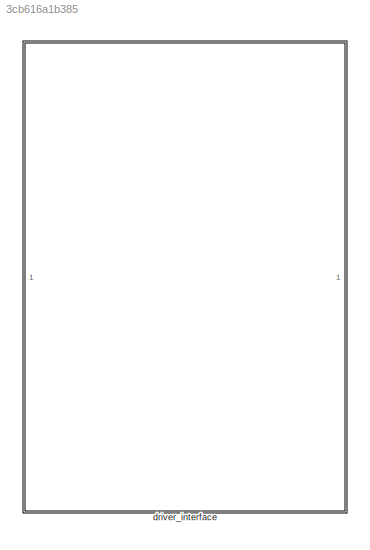
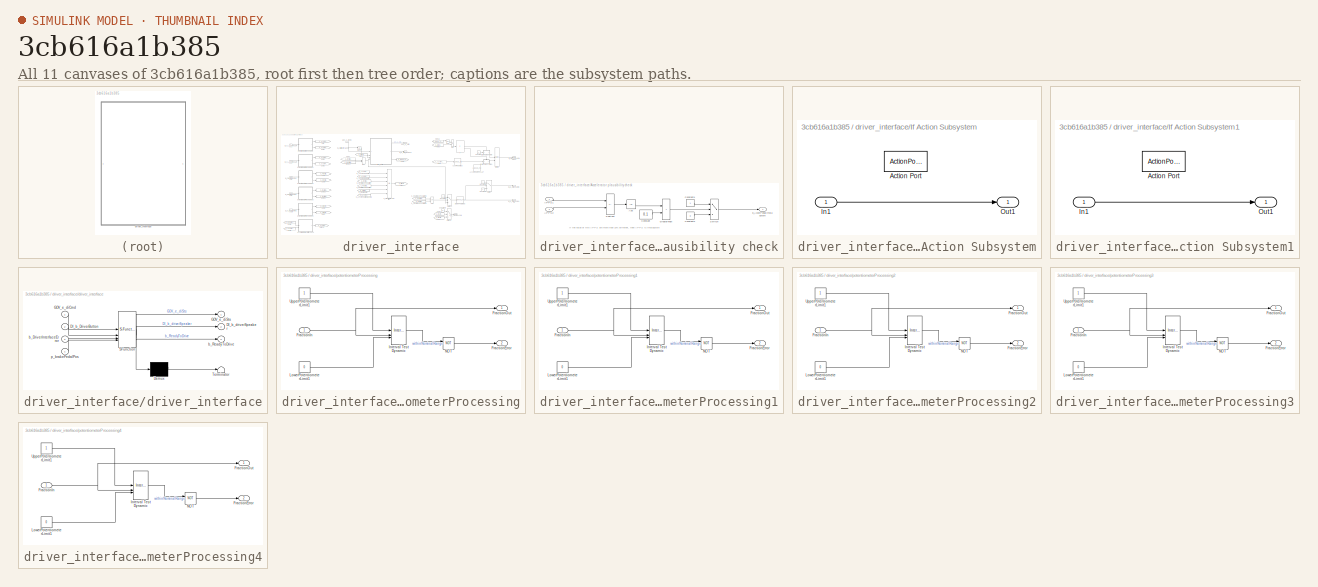
[diagram: thumbnail index - all 11 canvases of the model, root first then tree order]
MODEL slx_3cb616a1b385
KIND library
CONFIG AbsTol = auto
CONFIG EnableMultiTasking = off
CONFIG FixedStep = auto
CONFIG MaxStep = auto
CONFIG MinStep = auto
CONFIG RelTol = 1e-3
CONFIG SampleTimeConstraint = Unconstrained
CONFIG SolverName = VariableStepAuto
CONFIG StartTime = 0.0
CONFIG StopTime = 10.0
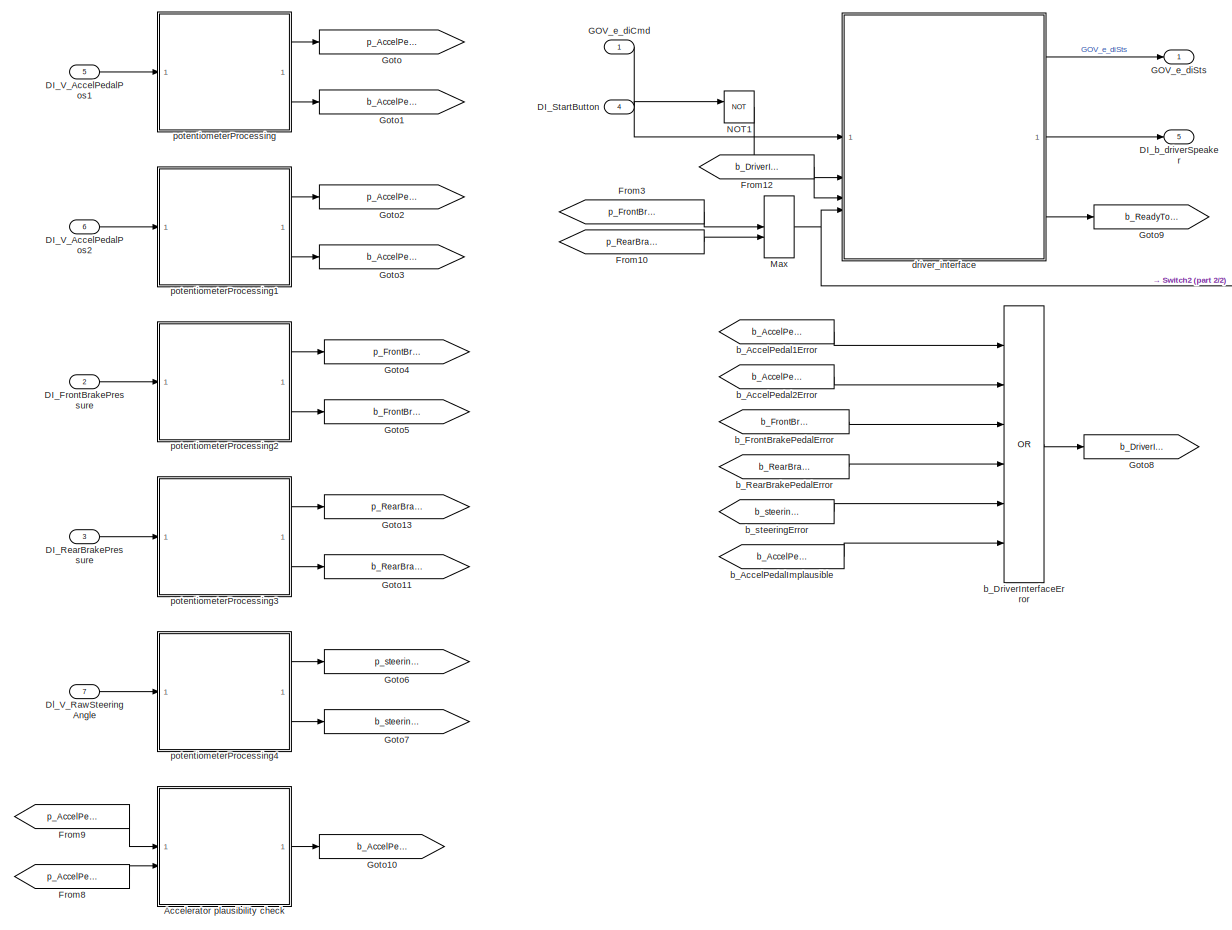
[diagram: driver_interface - part 1/2, left side, full height]
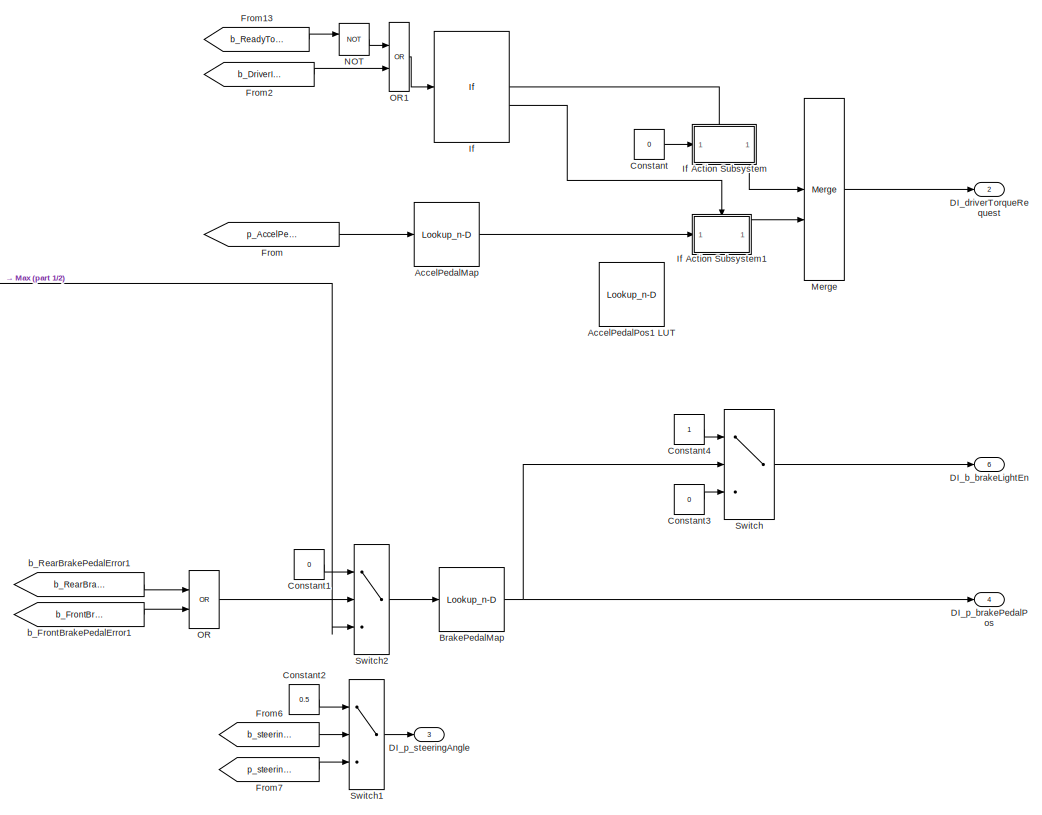
[diagram: driver_interface - part 2/2, right side, full height]
BLOCK [SubSystem] driver_interface
BLOCK [Lookup_n-D] driver_interface/AccelPedalMap
  BreakpointsForDimension1 = [0 1]
  ExtrapMethod = Clip
  InputPortMap = u0
  InternalRulePriority = Speed
  NumberOfTableDimensions = 1
  RndMeth = Simplest
  Table = [0 1]
BLOCK [Lookup_n-D] driver_interface/AccelPedalPos1 LUT
  BreakpointsForDimension1 = [0 1 2 3 4 5 6 7 8 9 10 11 12 13 14 15 16 17 18 19 20 21 22 23 24 25 26 27 28 29 30 31 32 33 34 35 36 37 38 39 40 41 42 43 44 45 46 47 48 49 50 51 52 53 54 55 56 57 58 59 60 61 62 63 64 65 66 67 68 69 70 71 72 73 74 75 76 77 78 79 80 81 82 83 84 85 86 87 88 89 90 91 92 93 94 95 96 97 98 99]
  Commented = on
  ExtrapMethod = Clip
  InputPortMap = u0
  InternalRulePriority = Speed
  NumberOfTableDimensions = 1
  RndMeth = Simplest
  Table = [0 0 0 0 0 0 0 0 0 0 0 0 0 0 0 0 0 0 0 0 0 0 1.85185185185185 3.7037037037037 5.55555555555556 7.40740740740741 9.25925925925926 11.1111111111111 12.962962962963 14.8148148148148 16.6666666666667 18.5185185185185 20.3703703703704 22.2222222222222 24.0740740740741 25.9259259259259 27.7777777777778 29.6296296296296 31.4814814814815 33.3333333333333 35.1851851851852 37.037037037037 38.8888888888889 4...<+627ch>
BLOCK [SubSystem] driver_interface/Accelerator plausibility check
BLOCK [Inport] driver_interface/Accelerator plausibility check/APPS1
BLOCK [Inport] driver_interface/Accelerator plausibility check/APPS2
  Port = 2
BLOCK [Abs] driver_interface/Accelerator plausibility check/Abs
  SaturateOnIntegerOverflow = off
BLOCK [Constant] driver_interface/Accelerator plausibility check/Constant
  Value = 0.1
BLOCK [Constant] driver_interface/Accelerator plausibility check/Constant1
BLOCK [Constant] driver_interface/Accelerator plausibility check/Constant2
  Value = 0
BLOCK [RelationalOperator] driver_interface/Accelerator plausibility check/GreaterThan
  InputSameDT = off
  Operator = >
  OutDataTypeStr = boolean
  RndMeth = Simplest
BLOCK [Sum] driver_interface/Accelerator plausibility check/Subtract
  IconShape = rectangular
  Inputs = +-
BLOCK [Switch] driver_interface/Accelerator plausibility check/Switch
  Criteria = u2 > Threshold
  InputSameDT = off
  SaturateOnIntegerOverflow = off
BLOCK [Outport] driver_interface/Accelerator plausibility check/b_AccelPedalImplausible
BLOCK [Lookup_n-D] driver_interface/BrakePedalMap
  BreakpointsForDimension1 = [0 5 10 15 20 25 30 35 40 45 50 55 60 65 70 75 80 85 90 95 100]
  ExtrapMethod = Clip
  InputPortMap = u0
  InternalRulePriority = Speed
  NumberOfTableDimensions = 1
  RndMeth = Simplest
  Table = [0 5 10 15 20 25 30 35 40 45 50 55 60 65 70 75 80 85 90 95 100]
BLOCK [Constant] driver_interface/Constant
  OutDataTypeStr = double
  Value = 0
BLOCK [Constant] driver_interface/Constant1
  OutDataTypeStr = single
  Value = 0
BLOCK [Constant] driver_interface/Constant2
  OutDataTypeStr = single
  Value = 0.5
BLOCK [Constant] driver_interface/Constant3
  OutDataTypeStr = boolean
  Value = 0
BLOCK [Constant] driver_interface/Constant4
  OutDataTypeStr = boolean
BLOCK [Inport] driver_interface/DI_FrontBrakePressure
  Port = 2
BLOCK [Inport] driver_interface/DI_RearBrakePressure
  Port = 3
BLOCK [Inport] driver_interface/DI_StartButton
  Port = 4
BLOCK [Inport] driver_interface/DI_V_AccelPedalPos1
  Port = 5
BLOCK [Inport] driver_interface/DI_V_AccelPedalPos2
  Port = 6
BLOCK [Outport] driver_interface/DI_b_brakeLightEn
  Port = 6
BLOCK [Outport] driver_interface/DI_b_driverSpeaker
  Port = 5
BLOCK [Outport] driver_interface/DI_driverTorqueRequest
  Port = 2
BLOCK [Outport] driver_interface/DI_p_brakePedalPos
  Port = 4
BLOCK [Outport] driver_interface/DI_p_steeringAngle
  Port = 3
BLOCK [Inport] driver_interface/Dl_V_RawSteeringAngle
  Port = 7
BLOCK [From] driver_interface/From
  GotoTag = p_AccelPedalPos1
BLOCK [From] driver_interface/From10
  GotoTag = p_RearBrakePedalPos
BLOCK [From] driver_interface/From12
  GotoTag = b_DriverInterfaceError
BLOCK [From] driver_interface/From13
  GotoTag = b_ReadyToDrive
BLOCK [From] driver_interface/From2
  GotoTag = b_DriverInterfaceError
BLOCK [From] driver_interface/From3
  GotoTag = p_FrontBrakePedalPres
BLOCK [From] driver_interface/From6
  GotoTag = b_steeringError
BLOCK [From] driver_interface/From7
  GotoTag = p_steeringAngle
BLOCK [From] driver_interface/From8
  GotoTag = p_AccelPedalPos2
BLOCK [From] driver_interface/From9
  GotoTag = p_AccelPedalPos1
BLOCK [Inport] driver_interface/GOV_e_diCmd
BLOCK [Outport] driver_interface/GOV_e_diSts
BLOCK [Goto] driver_interface/Goto
  GotoTag = p_AccelPedalPos1
BLOCK [Goto] driver_interface/Goto1
  GotoTag = b_AccelPedal1Error
BLOCK [Goto] driver_interface/Goto10
  GotoTag = b_AccelPedalImplausible
BLOCK [Goto] driver_interface/Goto11
  GotoTag = b_RearBrakePedalError
BLOCK [Goto] driver_interface/Goto13
  GotoTag = p_RearBrakePedalPos
BLOCK [Goto] driver_interface/Goto2
  GotoTag = p_AccelPedalPos2
BLOCK [Goto] driver_interface/Goto3
  GotoTag = b_AccelPedal2Error
BLOCK [Goto] driver_interface/Goto4
  GotoTag = p_FrontBrakePedalPres
BLOCK [Goto] driver_interface/Goto5
  GotoTag = b_FrontBrakePedalError
BLOCK [Goto] driver_interface/Goto6
  GotoTag = p_steeringAngle
BLOCK [Goto] driver_interface/Goto7
  GotoTag = b_steeringError
BLOCK [Goto] driver_interface/Goto8
  GotoTag = b_DriverInterfaceError
BLOCK [Goto] driver_interface/Goto9
  GotoTag = b_ReadyToDrive
BLOCK [If] driver_interface/If
  IfExpression = u1==1
BLOCK [SubSystem] driver_interface/If Action Subsystem
  TreatAsAtomicUnit = on
BLOCK [ActionPort] driver_interface/If Action Subsystem/Action Port
BLOCK [Inport] driver_interface/If Action Subsystem/In1
BLOCK [Outport] driver_interface/If Action Subsystem/Out1
BLOCK [SubSystem] driver_interface/If Action Subsystem1
  TreatAsAtomicUnit = on
BLOCK [ActionPort] driver_interface/If Action Subsystem1/Action Port
BLOCK [Inport] driver_interface/If Action Subsystem1/In1
BLOCK [Outport] driver_interface/If Action Subsystem1/Out1
BLOCK [MinMax] driver_interface/Max
  Function = max
  Inputs = 2
BLOCK [Merge] driver_interface/Merge
BLOCK [Logic] driver_interface/NOT
  AllPortsSameDT = off
  IconShape = distinctive
  Operator = NOT
  OutDataTypeStr = boolean
BLOCK [Logic] driver_interface/NOT1
  AllPortsSameDT = off
  IconShape = distinctive
  Operator = NOT
  OutDataTypeStr = boolean
BLOCK [Logic] driver_interface/OR
  AllPortsSameDT = off
  Operator = OR
  OutDataTypeStr = boolean
BLOCK [Logic] driver_interface/OR1
  AllPortsSameDT = off
  Operator = OR
  OutDataTypeStr = boolean
BLOCK [Switch] driver_interface/Switch
  Criteria = u2 > Threshold
  InputSameDT = off
  SaturateOnIntegerOverflow = off
  Threshold = 0.1
BLOCK [Switch] driver_interface/Switch1
  Criteria = u2 > Threshold
  InputSameDT = off
  SaturateOnIntegerOverflow = off
BLOCK [Switch] driver_interface/Switch2
  Criteria = u2 > Threshold
  InputSameDT = off
  SaturateOnIntegerOverflow = off
BLOCK [From] driver_interface/b_AccelPedal1Error
  GotoTag = b_AccelPedal1Error
BLOCK [From] driver_interface/b_AccelPedal2Error
  GotoTag = b_AccelPedal2Error
BLOCK [From] driver_interface/b_AccelPedalImplausible
  GotoTag = b_AccelPedalImplausible
BLOCK [Logic] driver_interface/b_DriverInterfaceError
  AllPortsSameDT = off
  Inputs = 6
  Operator = OR
  OutDataTypeStr = boolean
BLOCK [From] driver_interface/b_FrontBrakePedalError
  GotoTag = b_FrontBrakePedalError
BLOCK [From] driver_interface/b_FrontBrakePedalError1
  GotoTag = b_FrontBrakePedalError
BLOCK [From] driver_interface/b_RearBrakePedalError
  GotoTag = b_RearBrakePedalError
BLOCK [From] driver_interface/b_RearBrakePedalError1
  GotoTag = b_RearBrakePedalError
BLOCK [From] driver_interface/b_steeringError
  GotoTag = b_steeringError
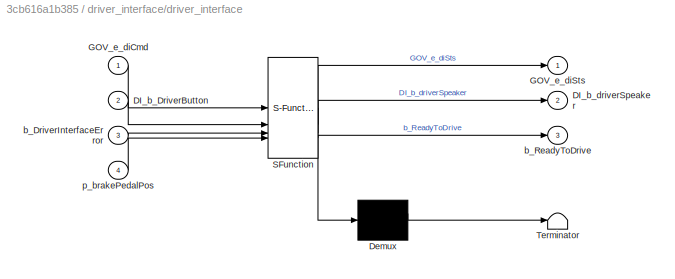
BLOCK [SubSystem] driver_interface/driver_interface
  ErrorFcn = Stateflow.Translate.translate
  PermitHierarchicalResolution = ExplicitOnly
  SFBlockType = Chart
  TreatAsAtomicUnit = on
BLOCK [Demux] driver_interface/driver_interface/ Demux 
  Outputs = 1
BLOCK [S-Function] driver_interface/driver_interface/ SFunction 
  EnableBusSupport = off
  FunctionName = sf_sfun
  PortCounts = [4 4]
  SFcnIsStateOwnerBlock = off
  SFunctionDeploymentMode = off
  Tag = Stateflow S-Function 2
BLOCK [Terminator] driver_interface/driver_interface/ Terminator 
BLOCK [Inport] driver_interface/driver_interface/DI_b_DriverButton
  Port = 2
BLOCK [Outport] driver_interface/driver_interface/DI_b_driverSpeaker
  Port = 2
BLOCK [Inport] driver_interface/driver_interface/GOV_e_diCmd
BLOCK [Outport] driver_interface/driver_interface/GOV_e_diSts
BLOCK [Inport] driver_interface/driver_interface/b_DriverInterfaceError
  Port = 3
BLOCK [Outport] driver_interface/driver_interface/b_ReadyToDrive
  Port = 3
BLOCK [Inport] driver_interface/driver_interface/p_brakePedalPos
  Port = 4
BLOCK [SubSystem] driver_interface/potentiometerProcessing
BLOCK [Outport] driver_interface/potentiometerProcessing/FractionError
  Port = 2
BLOCK [Inport] driver_interface/potentiometerProcessing/FractionIn
BLOCK [Outport] driver_interface/potentiometerProcessing/FractionOut
BLOCK [Reference] driver_interface/potentiometerProcessing/Interval Test Dynamic  REF=simulink/Logic and Bit
Operations/Interval Test
Dynamic
  SourceBlock = simulink/Logic and Bit\nOperations/Interval Test\nDynamic
  SourceType = Interval Test Dynamic
BLOCK [Constant] driver_interface/potentiometerProcessing/LowerPotentiometerLimit1
  OutDataTypeStr = double
  Value = 0
BLOCK [Logic] driver_interface/potentiometerProcessing/NOT
  AllPortsSameDT = off
  IconShape = distinctive
  Operator = NOT
  OutDataTypeStr = boolean
BLOCK [Constant] driver_interface/potentiometerProcessing/UpperPotentiometerLimit1
  OutDataTypeStr = double
BLOCK [SubSystem] driver_interface/potentiometerProcessing1
BLOCK [Outport] driver_interface/potentiometerProcessing1/FractionError
  Port = 2
BLOCK [Inport] driver_interface/potentiometerProcessing1/FractionIn
BLOCK [Outport] driver_interface/potentiometerProcessing1/FractionOut
BLOCK [Reference] driver_interface/potentiometerProcessing1/Interval Test Dynamic  REF=simulink/Logic and Bit
Operations/Interval Test
Dynamic
  SourceBlock = simulink/Logic and Bit\nOperations/Interval Test\nDynamic
  SourceType = Interval Test Dynamic
BLOCK [Constant] driver_interface/potentiometerProcessing1/LowerPotentiometerLimit1
  OutDataTypeStr = double
  Value = 0
BLOCK [Logic] driver_interface/potentiometerProcessing1/NOT
  AllPortsSameDT = off
  IconShape = distinctive
  Operator = NOT
  OutDataTypeStr = boolean
BLOCK [Constant] driver_interface/potentiometerProcessing1/UpperPotentiometerLimit1
  OutDataTypeStr = double
BLOCK [SubSystem] driver_interface/potentiometerProcessing2
BLOCK [Outport] driver_interface/potentiometerProcessing2/FractionError
  Port = 2
BLOCK [Inport] driver_interface/potentiometerProcessing2/FractionIn
BLOCK [Outport] driver_interface/potentiometerProcessing2/FractionOut
BLOCK [Reference] driver_interface/potentiometerProcessing2/Interval Test Dynamic  REF=simulink/Logic and Bit
Operations/Interval Test
Dynamic
  SourceBlock = simulink/Logic and Bit\nOperations/Interval Test\nDynamic
  SourceType = Interval Test Dynamic
BLOCK [Constant] driver_interface/potentiometerProcessing2/LowerPotentiometerLimit1
  OutDataTypeStr = double
  Value = 0
BLOCK [Logic] driver_interface/potentiometerProcessing2/NOT
  AllPortsSameDT = off
  IconShape = distinctive
  Operator = NOT
  OutDataTypeStr = boolean
BLOCK [Constant] driver_interface/potentiometerProcessing2/UpperPotentiometerLimit1
  OutDataTypeStr = double
BLOCK [SubSystem] driver_interface/potentiometerProcessing3
BLOCK [Outport] driver_interface/potentiometerProcessing3/FractionError
  Port = 2
BLOCK [Inport] driver_interface/potentiometerProcessing3/FractionIn
BLOCK [Outport] driver_interface/potentiometerProcessing3/FractionOut
BLOCK [Reference] driver_interface/potentiometerProcessing3/Interval Test Dynamic  REF=simulink/Logic and Bit
Operations/Interval Test
Dynamic
  SourceBlock = simulink/Logic and Bit\nOperations/Interval Test\nDynamic
  SourceType = Interval Test Dynamic
BLOCK [Constant] driver_interface/potentiometerProcessing3/LowerPotentiometerLimit1
  OutDataTypeStr = double
  Value = 0
BLOCK [Logic] driver_interface/potentiometerProcessing3/NOT
  AllPortsSameDT = off
  IconShape = distinctive
  Operator = NOT
  OutDataTypeStr = boolean
BLOCK [Constant] driver_interface/potentiometerProcessing3/UpperPotentiometerLimit1
  OutDataTypeStr = double
BLOCK [SubSystem] driver_interface/potentiometerProcessing4
BLOCK [Outport] driver_interface/potentiometerProcessing4/FractionError
  Port = 2
BLOCK [Inport] driver_interface/potentiometerProcessing4/FractionIn
BLOCK [Outport] driver_interface/potentiometerProcessing4/FractionOut
BLOCK [Reference] driver_interface/potentiometerProcessing4/Interval Test Dynamic  REF=simulink/Logic and Bit
Operations/Interval Test
Dynamic
  SourceBlock = simulink/Logic and Bit\nOperations/Interval Test\nDynamic
  SourceType = Interval Test Dynamic
BLOCK [Constant] driver_interface/potentiometerProcessing4/LowerPotentiometerLimit1
  OutDataTypeStr = double
  Value = 0
BLOCK [Logic] driver_interface/potentiometerProcessing4/NOT
  AllPortsSameDT = off
  IconShape = distinctive
  Operator = NOT
  OutDataTypeStr = boolean
BLOCK [Constant] driver_interface/potentiometerProcessing4/UpperPotentiometerLimit1
  OutDataTypeStr = double
ANNOTATION driver_interface/Accelerator plausibility check: If the value of two APPS are more than 10% different, then APPS is implausible
LINE driver_interface/AccelPedalMap:1 -> driver_interface/If Action Subsystem1:1
LINE driver_interface/Accelerator plausibility check/APPS1:1 -> driver_interface/Accelerator plausibility check/Subtract:1
LINE driver_interface/Accelerator plausibility check/APPS2:1 -> driver_interface/Accelerator plausibility check/Subtract:2
LINE driver_interface/Accelerator plausibility check/Abs:1 -> driver_interface/Accelerator plausibility check/GreaterThan:1
LINE driver_interface/Accelerator plausibility check/Constant1:1 -> driver_interface/Accelerator plausibility check/Switch:1
LINE driver_interface/Accelerator plausibility check/Constant2:1 -> driver_interface/Accelerator plausibility check/Switch:3
LINE driver_interface/Accelerator plausibility check/Constant:1 -> driver_interface/Accelerator plausibility check/GreaterThan:2
LINE driver_interface/Accelerator plausibility check/GreaterThan:1 -> driver_interface/Accelerator plausibility check/Switch:2
LINE driver_interface/Accelerator plausibility check/Subtract:1 -> driver_interface/Accelerator plausibility check/Abs:1
LINE driver_interface/Accelerator plausibility check/Switch:1 -> driver_interface/Accelerator plausibility check/b_AccelPedalImplausible:1
LINE driver_interface/Accelerator plausibility check:1 -> driver_interface/Goto10:1
NET driver_interface/BrakePedalMap:1 -> driver_interface/DI_p_brakePedalPos:1, driver_interface/Switch:2
LINE driver_interface/Constant1:1 -> driver_interface/Switch2:1
LINE driver_interface/Constant2:1 -> driver_interface/Switch1:1
LINE driver_interface/Constant3:1 -> driver_interface/Switch:3
LINE driver_interface/Constant4:1 -> driver_interface/Switch:1
LINE driver_interface/Constant:1 -> driver_interface/If Action Subsystem:1
LINE driver_interface/DI_FrontBrakePressure:1 -> driver_interface/potentiometerProcessing2:1
LINE driver_interface/DI_RearBrakePressure:1 -> driver_interface/potentiometerProcessing3:1
LINE driver_interface/DI_StartButton:1 -> driver_interface/NOT1:1
LINE driver_interface/DI_V_AccelPedalPos1:1 -> driver_interface/potentiometerProcessing:1
LINE driver_interface/DI_V_AccelPedalPos2:1 -> driver_interface/potentiometerProcessing1:1
LINE driver_interface/Dl_V_RawSteeringAngle:1 -> driver_interface/potentiometerProcessing4:1
LINE driver_interface/From10:1 -> driver_interface/Max:2
LINE driver_interface/From12:1 -> driver_interface/driver_interface:3
LINE driver_interface/From13:1 -> driver_interface/NOT:1
LINE driver_interface/From2:1 -> driver_interface/OR1:2
LINE driver_interface/From3:1 -> driver_interface/Max:1
LINE driver_interface/From6:1 -> driver_interface/Switch1:2
LINE driver_interface/From7:1 -> driver_interface/Switch1:3
LINE driver_interface/From8:1 -> driver_interface/Accelerator plausibility check:2
LINE driver_interface/From9:1 -> driver_interface/Accelerator plausibility check:1
LINE driver_interface/From:1 -> driver_interface/AccelPedalMap:1
LINE driver_interface/GOV_e_diCmd:1 -> driver_interface/driver_interface:1
LINE driver_interface/If Action Subsystem/In1:1 -> driver_interface/If Action Subsystem/Out1:1
LINE driver_interface/If Action Subsystem1/In1:1 -> driver_interface/If Action Subsystem1/Out1:1
LINE driver_interface/If Action Subsystem1:1 -> driver_interface/Merge:2
LINE driver_interface/If Action Subsystem:1 -> driver_interface/Merge:1
LINE driver_interface/If:1 -> driver_interface/If Action Subsystem:ifaction
LINE driver_interface/If:2 -> driver_interface/If Action Subsystem1:ifaction
NET driver_interface/Max:1 -> driver_interface/Switch2:3, driver_interface/driver_interface:4
LINE driver_interface/Merge:1 -> driver_interface/DI_driverTorqueRequest:1
LINE driver_interface/NOT1:1 -> driver_interface/driver_interface:2
LINE driver_interface/NOT:1 -> driver_interface/OR1:1
LINE driver_interface/OR1:1 -> driver_interface/If:1
LINE driver_interface/OR:1 -> driver_interface/Switch2:2
LINE driver_interface/Switch1:1 -> driver_interface/DI_p_steeringAngle:1
LINE driver_interface/Switch2:1 -> driver_interface/BrakePedalMap:1
LINE driver_interface/Switch:1 -> driver_interface/DI_b_brakeLightEn:1
LINE driver_interface/b_AccelPedal1Error:1 -> driver_interface/b_DriverInterfaceError:1
LINE driver_interface/b_AccelPedal2Error:1 -> driver_interface/b_DriverInterfaceError:2
LINE driver_interface/b_AccelPedalImplausible:1 -> driver_interface/b_DriverInterfaceError:6
LINE driver_interface/b_DriverInterfaceError:1 -> driver_interface/Goto8:1
LINE driver_interface/b_FrontBrakePedalError1:1 -> driver_interface/OR:2
LINE driver_interface/b_FrontBrakePedalError:1 -> driver_interface/b_DriverInterfaceError:3
LINE driver_interface/b_RearBrakePedalError1:1 -> driver_interface/OR:1
LINE driver_interface/b_RearBrakePedalError:1 -> driver_interface/b_DriverInterfaceError:4
LINE driver_interface/b_steeringError:1 -> driver_interface/b_DriverInterfaceError:5
LINE driver_interface/driver_interface:1 -> driver_interface/GOV_e_diSts:1
LINE driver_interface/driver_interface:2 -> driver_interface/DI_b_driverSpeaker:1
LINE driver_interface/driver_interface:3 -> driver_interface/Goto9:1
NET driver_interface/potentiometerProcessing/FractionIn:1 -> driver_interface/potentiometerProcessing/FractionOut:1, driver_interface/potentiometerProcessing/Interval Test Dynamic:2
LINE driver_interface/potentiometerProcessing/Interval Test Dynamic:1 -> driver_interface/potentiometerProcessing/NOT:1
LINE driver_interface/potentiometerProcessing/LowerPotentiometerLimit1:1 -> driver_interface/potentiometerProcessing/Interval Test Dynamic:3
LINE driver_interface/potentiometerProcessing/NOT:1 -> driver_interface/potentiometerProcessing/FractionError:1
LINE driver_interface/potentiometerProcessing/UpperPotentiometerLimit1:1 -> driver_interface/potentiometerProcessing/Interval Test Dynamic:1
NET driver_interface/potentiometerProcessing1/FractionIn:1 -> driver_interface/potentiometerProcessing1/FractionOut:1, driver_interface/potentiometerProcessing1/Interval Test Dynamic:2
LINE driver_interface/potentiometerProcessing1/Interval Test Dynamic:1 -> driver_interface/potentiometerProcessing1/NOT:1
LINE driver_interface/potentiometerProcessing1/LowerPotentiometerLimit1:1 -> driver_interface/potentiometerProcessing1/Interval Test Dynamic:3
LINE driver_interface/potentiometerProcessing1/NOT:1 -> driver_interface/potentiometerProcessing1/FractionError:1
LINE driver_interface/potentiometerProcessing1/UpperPotentiometerLimit1:1 -> driver_interface/potentiometerProcessing1/Interval Test Dynamic:1
LINE driver_interface/potentiometerProcessing1:1 -> driver_interface/Goto2:1
LINE driver_interface/potentiometerProcessing1:2 -> driver_interface/Goto3:1
NET driver_interface/potentiometerProcessing2/FractionIn:1 -> driver_interface/potentiometerProcessing2/FractionOut:1, driver_interface/potentiometerProcessing2/Interval Test Dynamic:2
LINE driver_interface/potentiometerProcessing2/Interval Test Dynamic:1 -> driver_interface/potentiometerProcessing2/NOT:1
LINE driver_interface/potentiometerProcessing2/LowerPotentiometerLimit1:1 -> driver_interface/potentiometerProcessing2/Interval Test Dynamic:3
LINE driver_interface/potentiometerProcessing2/NOT:1 -> driver_interface/potentiometerProcessing2/FractionError:1
LINE driver_interface/potentiometerProcessing2/UpperPotentiometerLimit1:1 -> driver_interface/potentiometerProcessing2/Interval Test Dynamic:1
LINE driver_interface/potentiometerProcessing2:1 -> driver_interface/Goto4:1
LINE driver_interface/potentiometerProcessing2:2 -> driver_interface/Goto5:1
NET driver_interface/potentiometerProcessing3/FractionIn:1 -> driver_interface/potentiometerProcessing3/FractionOut:1, driver_interface/potentiometerProcessing3/Interval Test Dynamic:2
LINE driver_interface/potentiometerProcessing3/Interval Test Dynamic:1 -> driver_interface/potentiometerProcessing3/NOT:1
LINE driver_interface/potentiometerProcessing3/LowerPotentiometerLimit1:1 -> driver_interface/potentiometerProcessing3/Interval Test Dynamic:3
LINE driver_interface/potentiometerProcessing3/NOT:1 -> driver_interface/potentiometerProcessing3/FractionError:1
LINE driver_interface/potentiometerProcessing3/UpperPotentiometerLimit1:1 -> driver_interface/potentiometerProcessing3/Interval Test Dynamic:1
LINE driver_interface/potentiometerProcessing3:1 -> driver_interface/Goto13:1
LINE driver_interface/potentiometerProcessing3:2 -> driver_interface/Goto11:1
NET driver_interface/potentiometerProcessing4/FractionIn:1 -> driver_interface/potentiometerProcessing4/FractionOut:1, driver_interface/potentiometerProcessing4/Interval Test Dynamic:2
LINE driver_interface/potentiometerProcessing4/Interval Test Dynamic:1 -> driver_interface/potentiometerProcessing4/NOT:1
LINE driver_interface/potentiometerProcessing4/LowerPotentiometerLimit1:1 -> driver_interface/potentiometerProcessing4/Interval Test Dynamic:3
LINE driver_interface/potentiometerProcessing4/NOT:1 -> driver_interface/potentiometerProcessing4/FractionError:1
LINE driver_interface/potentiometerProcessing4/UpperPotentiometerLimit1:1 -> driver_interface/potentiometerProcessing4/Interval Test Dynamic:1
LINE driver_interface/potentiometerProcessing4:1 -> driver_interface/Goto6:1
LINE driver_interface/potentiometerProcessing4:2 -> driver_interface/Goto7:1
LINE driver_interface/potentiometerProcessing:1 -> driver_interface/Goto:1
LINE driver_interface/potentiometerProcessing:2 -> driver_interface/Goto1:1
note: NET lines group one-source signal fan-out (src -> all destinations, sorted); 1:1 wires keep LINE
CHART driver_interface/driver_interface states=10 transitions=10
  STATE_LABEL 'INIT\nen:\nGOV_e_diSts = DI_STATUSES.DI_STS_INIT;\nb_ReadyToDrive=false;\nDI_b_driverSpeaker = false;\n'
  STATE_LABEL 'DI_running'
  STATE_LABEL 'Waiting_for_driver\nen:\nGOV_e_diSts = ...\n    DI_STATUSES.WAITING_FOR_DRVR;'
  STATE_LABEL 'Driver_requested_start\nen:\nGOV_e_diSts =...\n    DI_STATUSES.HV_START_REQ;'
  STATE_LABEL 'Motor_start_request\nen:\nGOV_e_diSts = ...\n    DI_STATUSES.READY_TO_DRIVE_REQ;'
  STATE_LABEL 'Ready_to_drive\nen:\nb_ReadyToDrive = true;\nGOV_e_diSts = DI_RUNNING;\n'
  STATE_LABEL 'SpeakerOn_\nen:\nDI_b_driverSpeaker = true;\n'
  STATE_LABEL 'SpeakerOff\nen:\nDI_b_driverSpeaker = false;\n'
  STATE_LABEL 'after(2,sec)'
  STATE_LABEL '[(DI_b_DriverButton==1)]'
  STATE_LABEL '[GOV_e_diCmd == DI_CMD.HV_ON && DI_b_DriverButton == 1]'
  STATE_LABEL '[GOV_e_diCmd ==...\n DI_CMD.READY_TO_DRIVE  && (p_brakePedalPos>0.1)]'
  STATE_LABEL 'Waiting_for_driver\nen:\nGOV_e_diSts = ...\n    DI_STATUSES.WAITING_FOR_DRVR;'
  STATE_LABEL 'Driver_requested_start\nen:\nGOV_e_diSts =...\n    DI_STATUSES.HV_START_REQ;'
  STATE_LABEL 'Motor_start_request\nen:\nGOV_e_diSts = ...\n    DI_STATUSES.READY_TO_DRIVE_REQ;'
  STATE_LABEL 'Ready_to_drive\nen:\nb_ReadyToDrive = true;\nGOV_e_diSts = DI_RUNNING;\n'
  STATE_LABEL 'SpeakerOn_\nen:\nDI_b_driverSpeaker = true;\n'
  STATE_LABEL 'SpeakerOff\nen:\nDI_b_driverSpeaker = false;\n'
  STATE_LABEL 'after(2,sec)'
  STATE_LABEL 'SpeakerOn_\nen:\nDI_b_driverSpeaker = true;\n'
  STATE_LABEL 'SpeakerOff\nen:\nDI_b_driverSpeaker = false;\n'
  STATE_LABEL 'DI_error\nen:\nGOV_e_diSts = DI_STATUSES.DI_ERROR;\n'
  STATE_LABEL 'Vehicle_coasting\nen:\nb_ReadyToDrive = false;\nGOV_e_diSts = DI_STATUSES.DI_IDLE;\n'
CHART  states=0 transitions=0
